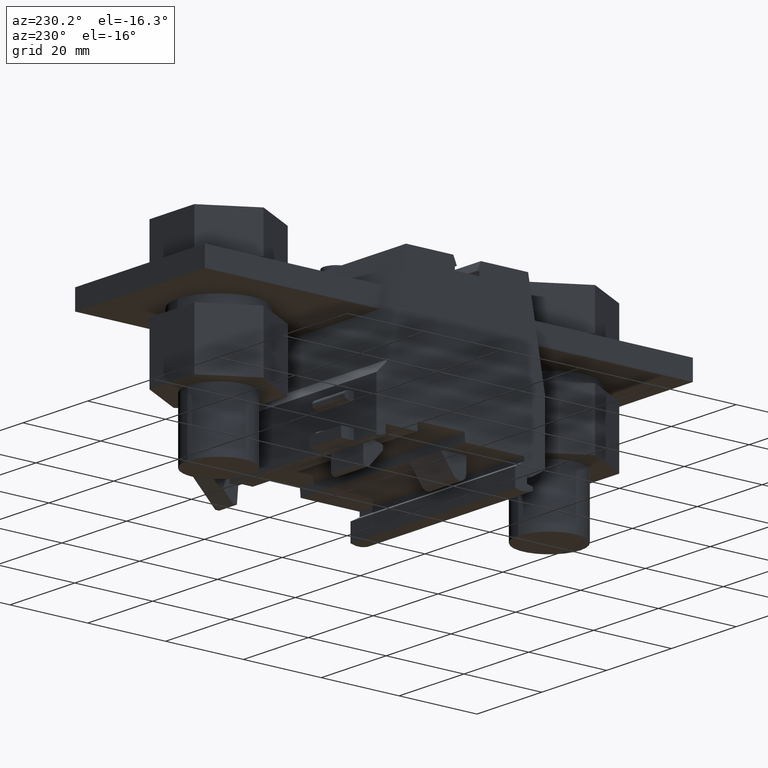
[diagram: clean part render]
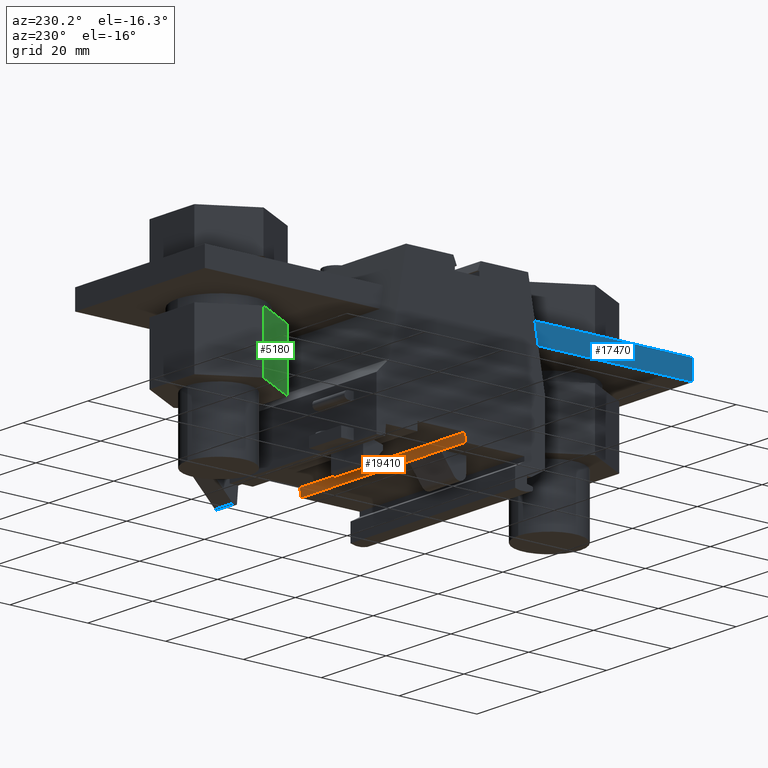
[diagram: same view with three faces highlighted in distinct colors, each labeled with its STEP entity id]
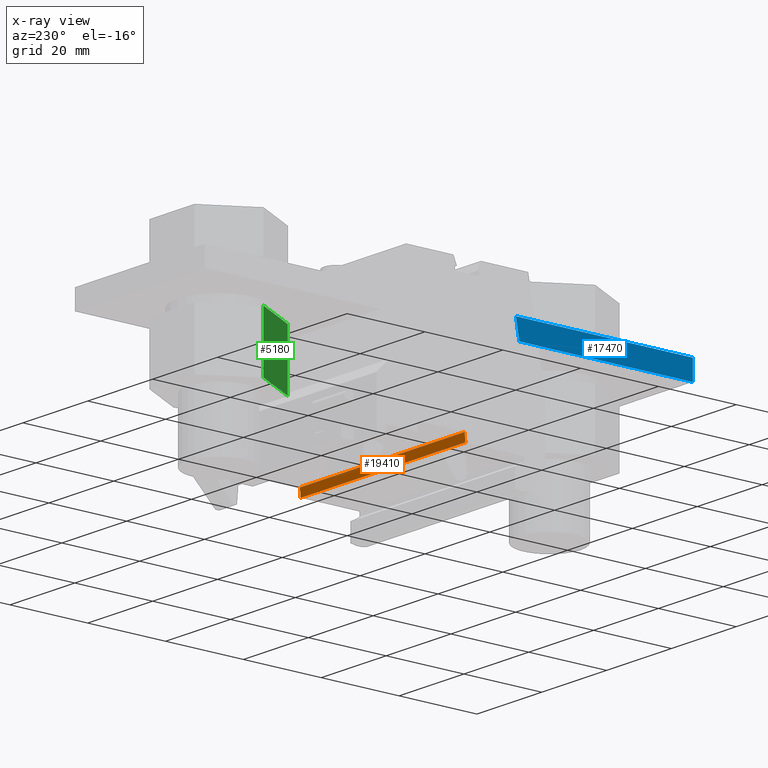
[diagram: x-ray of the same camera — body ghosted, the three highlighted faces saturated]
A machine part, auxiliary view with three faces highlighted in distinct colors.
The next image is the same camera in x-ray (body ghosted, the three faces saturated) — at least one of them is partly hidden behind the body in this view.
Their STEP definitions:

[orange] entity #19410 — the highlighted planar face has unit normal (-0, -0.9962, 0.0872).
#1480=CARTESIAN_POINT('',(-239.957541587317,734.631092873311,27.6));
#1490=VERTEX_POINT('',#1480);
#1520=CARTESIAN_POINT('',(-304.229434087378,0.,27.6));
#1530=DIRECTION('',(-0.0871557427476391,-0.996194698091747,0.));
#1540=VECTOR('',#1530,1.);
#1550=LINE('',#1520,#1540);
#1560=CARTESIAN_POINT('',(-240.141267780721,732.531092873311,27.6));
#1570=VERTEX_POINT('',#1560);
#1580=EDGE_CURVE('',#1490,#1570,#1550,.T.);
#19110=CARTESIAN_POINT('',(-240.061404256647,733.443937130564,
-23.1880221572189));
#19120=DIRECTION('',(-0.996194698091747,0.0871557427476391,
-7.55955565052625E-20));
#19130=DIRECTION('',(-0.0871557427476392,-0.996194698091747,
8.64061164711691E-19));
#19140=AXIS2_PLACEMENT_3D('',#19110,#19120,#19130);
#19150=PLANE('',#19140);
#19160=CARTESIAN_POINT('',(-240.141267780721,732.531092873312,0.));
#19170=DIRECTION('',(-7.58843192501114E-20,0.,1.));
#19180=VECTOR('',#19170,1.);
#19190=LINE('',#19160,#19180);
#19200=CARTESIAN_POINT('',(-240.141267780721,732.531092873311,-23.2));
#19210=VERTEX_POINT('',#19200);
#19220=EDGE_CURVE('',#19210,#1570,#19190,.T.);
#19230=ORIENTED_EDGE('',*,*,#19220,.F.);
#19240=ORIENTED_EDGE('',*,*,#1580,.T.);
#19250=CARTESIAN_POINT('',(-239.957541587317,734.631092873311,0.));
#19260=DIRECTION('',(-7.58843192501114E-20,0.,1.));
#19270=VECTOR('',#19260,1.);
#19280=LINE('',#19250,#19270);
#19290=CARTESIAN_POINT('',(-239.957541587317,734.631092873311,-23.2));
#19300=VERTEX_POINT('',#19290);
#19310=EDGE_CURVE('',#19300,#1490,#19280,.T.);
#19320=ORIENTED_EDGE('',*,*,#19310,.T.);
#19330=CARTESIAN_POINT('',(-304.229434087378,0.,-23.2));
#19340=DIRECTION('',(0.0871557427476391,0.996194698091747,0.));
#19350=VECTOR('',#19340,1.);
#19360=LINE('',#19330,#19350);
#19370=EDGE_CURVE('',#19210,#19300,#19360,.T.);
#19380=ORIENTED_EDGE('',*,*,#19370,.T.);
#19390=EDGE_LOOP('',(#19380,#19320,#19240,#19230));
#19400=FACE_OUTER_BOUND('',#19390,.T.);
#19410=ADVANCED_FACE('',(#19400),#19150,.F.);

[blue] entity #17470 — the highlighted planar face has unit normal (-1, 0, 0).
#7290=CARTESIAN_POINT('',(0.,757.956092873311,-17.8));
#7300=DIRECTION('',(-1.,0.,0.));
#7310=VECTOR('',#7300,1.);
#7320=LINE('',#7290,#7310);
#7330=CARTESIAN_POINT('',(-258.51365869138,757.956092873311,-17.8));
#7340=VERTEX_POINT('',#7330);
#7350=CARTESIAN_POINT('',(-303.107551201959,757.956092873311,-17.8));
#7360=VERTEX_POINT('',#7350);
#7370=EDGE_CURVE('',#7340,#7360,#7320,.T.);
#8210=CARTESIAN_POINT('',(-303.107551201959,762.956092873311,-17.8));
#8220=VERTEX_POINT('',#8210);
#8250=CARTESIAN_POINT('',(0.,762.956092873311,-17.8));
#8260=DIRECTION('',(-1.,0.,0.));
#8270=VECTOR('',#8260,1.);
#8280=LINE('',#8250,#8270);
#8290=CARTESIAN_POINT('',(-257.632023787838,762.956092873312,-17.8));
#8300=VERTEX_POINT('',#8290);
#8310=EDGE_CURVE('',#8300,#8220,#8280,.T.);
#11920=CARTESIAN_POINT('',(-303.107551201959,757.956092873311,-17.8));
#11930=DIRECTION('',(0.,1.,0.));
#11940=VECTOR('',#11930,1.);
#11950=LINE('',#11920,#11940);
#11960=EDGE_CURVE('',#7360,#8220,#11950,.T.);
#17310=CARTESIAN_POINT('',(-240.407551201959,760.456092873311,-17.8));
#17320=DIRECTION('',(0.,0.,-1.));
#17330=DIRECTION('',(-1.,0.,0.));
#17340=AXIS2_PLACEMENT_3D('',#17310,#17320,#17330);
#17350=PLANE('',#17340);
#17360=ORIENTED_EDGE('',*,*,#11960,.T.);
#17370=ORIENTED_EDGE('',*,*,#7370,.T.);
#17380=CARTESIAN_POINT('',(-392.161768057316,0.,-17.8));
#17390=DIRECTION('',(-0.17364817766693,-0.984807753012208,0.));
#17400=VECTOR('',#17390,1.);
#17410=LINE('',#17380,#17400);
#17420=EDGE_CURVE('',#8300,#7340,#17410,.T.);
#17430=ORIENTED_EDGE('',*,*,#17420,.T.);
#17440=ORIENTED_EDGE('',*,*,#8310,.F.);
#17450=EDGE_LOOP('',(#17440,#17430,#17370,#17360));
#17460=FACE_OUTER_BOUND('',#17450,.T.);
#17470=ADVANCED_FACE('',(#17460),#17350,.T.);

[green] entity #5180 — the highlighted planar face has unit normal (0.866, 0.5, 0).
#4790=CARTESIAN_POINT('',(-197.907551201958,740.556092873312,
-11.6564064028152));
#4800=DIRECTION('',(0.5,7.51157299223636E-19,0.866025403784439));
#4810=DIRECTION('',(0.866025403784439,-4.33680868910519E-19,-0.5));
#4820=AXIS2_PLACEMENT_3D('',#4790,#4800,#4810);
#4830=PLANE('',#4820);
#4840=CARTESIAN_POINT('',(-209.907551151959,0.,-4.72820320140631));
#4850=DIRECTION('',(1.11193617183233E-34,-1.,8.67361737821037E-19));
#4860=VECTOR('',#4850,1.);
#4870=LINE('',#4840,#4860);
#4880=CARTESIAN_POINT('',(-209.907551151959,755.356092873311,
-4.72820320140629));
#4890=VERTEX_POINT('',#4880);
#4900=CARTESIAN_POINT('',(-209.907551151959,740.556092873311,
-4.72820320140626));
#4910=VERTEX_POINT('',#4900);
#4920=EDGE_CURVE('',#4890,#4910,#4870,.T.);
#4930=ORIENTED_EDGE('',*,*,#4920,.F.);
#4940=CARTESIAN_POINT('',(0.,740.556092873311,-125.918384363925));
#4950=DIRECTION('',(-0.866025403784439,0.,0.5));
#4960=VECTOR('',#4950,1.);
#4970=LINE('',#4940,#4960);
#4980=CARTESIAN_POINT('',(-197.907551201968,740.556092873311,
-11.6564064028093));
#4990=VERTEX_POINT('',#4980);
#5000=EDGE_CURVE('',#4990,#4910,#4970,.T.);
#5010=ORIENTED_EDGE('',*,*,#5000,.T.);
#5020=CARTESIAN_POINT('',(-197.907551201968,0.,-11.6564064028093));
#5030=DIRECTION('',(3.7162808100146E-44,-1.,8.67361737821037E-19));
#5040=VECTOR('',#5030,1.);
#5050=LINE('',#5020,#5040);
#5060=CARTESIAN_POINT('',(-197.907551201968,755.356092873311,
-11.6564064028093));
#5070=VERTEX_POINT('',#5060);
#5080=EDGE_CURVE('',#5070,#4990,#5050,.T.);
#5090=ORIENTED_EDGE('',*,*,#5080,.T.);
#5100=CARTESIAN_POINT('',(0.,755.356092873311,-125.918384363925));
#5110=DIRECTION('',(-0.866025403784439,0.,0.5));
#5120=VECTOR('',#5110,1.);
#5130=LINE('',#5100,#5120);
#5140=EDGE_CURVE('',#5070,#4890,#5130,.T.);
#5150=ORIENTED_EDGE('',*,*,#5140,.F.);
#5160=EDGE_LOOP('',(#5150,#5090,#5010,#4930));
#5170=FACE_OUTER_BOUND('',#5160,.T.);
#5180=ADVANCED_FACE('',(#5170),#4830,.F.);